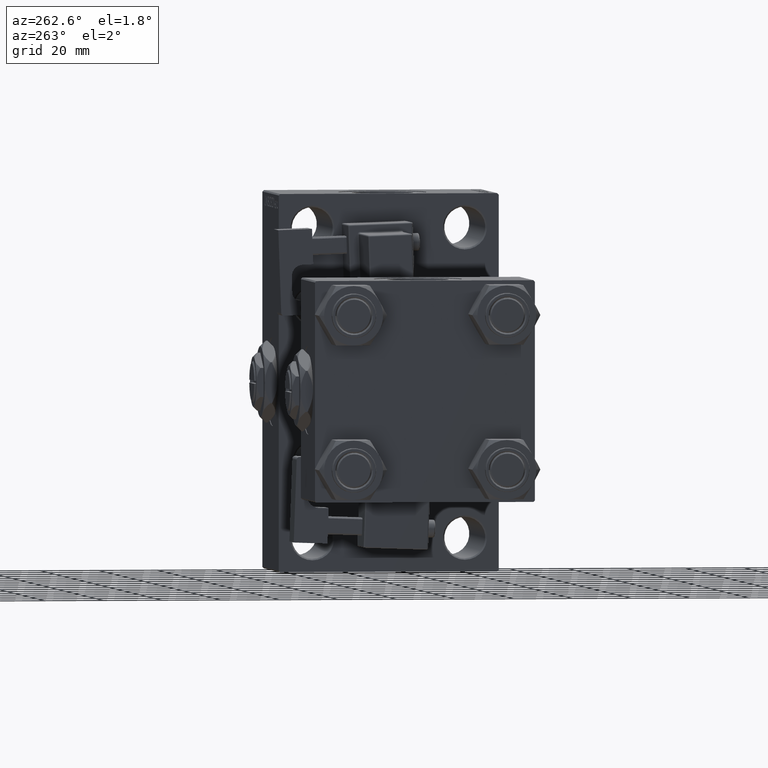
[diagram: clean part render]
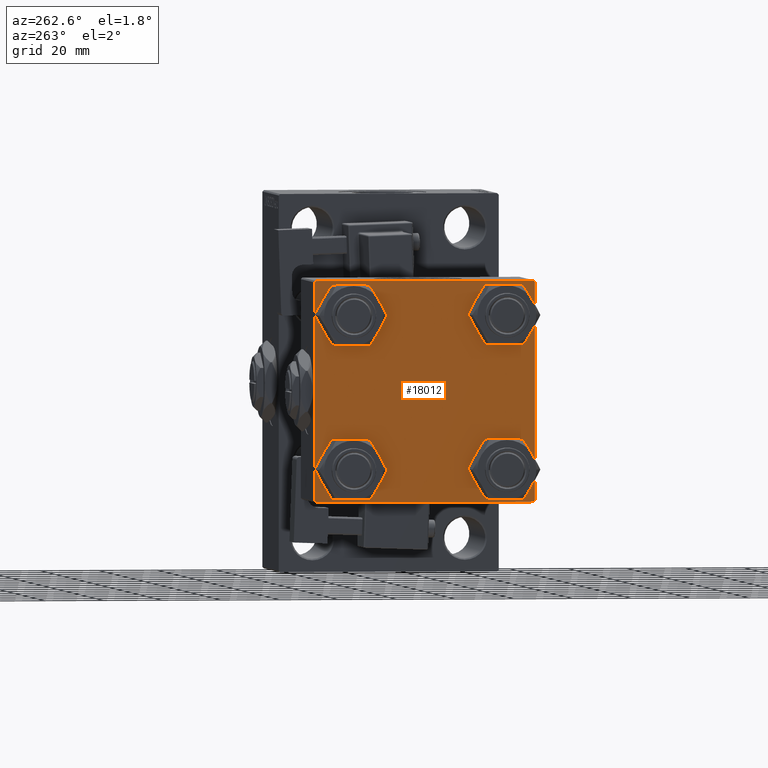
[diagram: same view with one face highlighted and labeled with its STEP entity id]
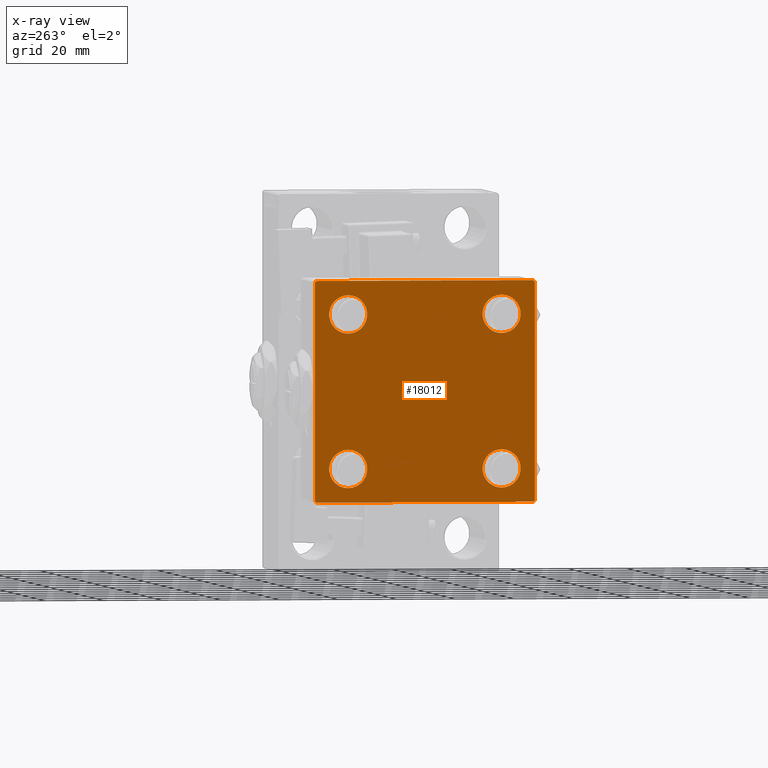
[diagram: x-ray of the same camera — body ghosted, the highlighted face saturated]
A machine part, auxiliary view. The second image highlights one B-rep face of the part: STEP entity #18012.
The next image is the same camera in x-ray: the body ghosted, the highlighted face saturated — about 0% of this face is hidden behind the body in this view.
In plain terms, the highlighted planar face has unit normal (-1, 0, 0).
Its self-contained STEP definition (entity closure, byte-faithful):
#272 = DIRECTION ( 'NONE',  ( 0.000000000000000000, -1.000000000000000000, -9.251858538542971581E-17 ) ) ;
#685 = VERTEX_POINT ( 'NONE', #20876 ) ;
#1801 = DIRECTION ( 'NONE',  ( 1.000000000000000000, -0.000000000000000000, 0.000000000000000000 ) ) ;
#1842 = EDGE_CURVE ( 'NONE', #22823, #34289, #29151, .T. ) ;
#2366 = ORIENTED_EDGE ( 'NONE', *, *, #12508, .T. ) ;
#2702 = VECTOR ( 'NONE', #33948, 1000.000000000000114 ) ;
#3434 = DIRECTION ( 'NONE',  ( 0.000000000000000000, 0.000000000000000000, 1.000000000000000000 ) ) ;
#3808 = EDGE_CURVE ( 'NONE', #40132, #7316, #44255, .T. ) ;
#4030 = CARTESIAN_POINT ( 'NONE',  ( 0.000000000000000000, 37.49999999999999289, 37.00000000000000000 ) ) ;
#4149 = CARTESIAN_POINT ( 'NONE',  ( 0.000000000000000000, 26.14999999999999858, -32.65000000000001990 ) ) ;
#5042 = DIRECTION ( 'NONE',  ( 1.000000000000000000, -0.000000000000000000, 0.000000000000000000 ) ) ;
#5252 = VERTEX_POINT ( 'NONE', #4030 ) ;
#5948 = DIRECTION ( 'NONE',  ( 0.000000000000000000, 0.000000000000000000, 1.000000000000000000 ) ) ;
#6146 = EDGE_CURVE ( 'NONE', #46607, #14690, #40222, .T. ) ;
#6574 = CARTESIAN_POINT ( 'NONE',  ( 0.000000000000000000, -37.50000000000000711, 37.49999999999999289 ) ) ;
#7316 = VERTEX_POINT ( 'NONE', #4149 ) ;
#7773 = CARTESIAN_POINT ( 'NONE',  ( 0.000000000000000000, 37.49999999999999289, 37.50000000000000000 ) ) ;
#7803 = CARTESIAN_POINT ( 'NONE',  ( 0.000000000000000000, -26.14999999999999147, -32.65000000000002700 ) ) ;
#7939 = DIRECTION ( 'NONE',  ( 0.000000000000000000, 0.000000000000000000, 1.000000000000000000 ) ) ;
#7972 = VERTEX_POINT ( 'NONE', #22657 ) ;
#7989 = CARTESIAN_POINT ( 'NONE',  ( 0.000000000000000000, -37.24999999999975842, -37.25000000000027001 ) ) ;
#8158 = CARTESIAN_POINT ( 'NONE',  ( 0.000000000000000000, 37.24999999999998579, -37.24999999999998579 ) ) ;
#8228 = EDGE_CURVE ( 'NONE', #19899, #9658, #21015, .T. ) ;
#8784 = DIRECTION ( 'NONE',  ( 1.000000000000000000, -0.000000000000000000, 0.000000000000000000 ) ) ;
#8958 = CARTESIAN_POINT ( 'NONE',  ( 0.000000000000000000, -26.14999999999999147, 32.65000000000003411 ) ) ;
#9658 = VERTEX_POINT ( 'NONE', #45497 ) ;
#10100 = EDGE_LOOP ( 'NONE', ( #41522, #45751 ) ) ;
#10614 = ORIENTED_EDGE ( 'NONE', *, *, #8228, .T. ) ;
#10862 = VERTEX_POINT ( 'NONE', #30817 ) ;
#11647 = CARTESIAN_POINT ( 'NONE',  ( 0.000000000000000000, -37.50000000000000000, -37.00000000000003553 ) ) ;
#12360 = AXIS2_PLACEMENT_3D ( 'NONE', #45970, #38411, #21743 ) ;
#12508 = EDGE_CURVE ( 'NONE', #42125, #34289, #36411, .T. ) ;
#12714 = CARTESIAN_POINT ( 'NONE',  ( -0.000000000000000000, -37.25000000000000000, 37.25000000000000000 ) ) ;
#13281 = CARTESIAN_POINT ( 'NONE',  ( 0.000000000000000000, -26.14999999999999147, -26.15000000000000924 ) ) ;
#14384 = LINE ( 'NONE', #6574, #28624 ) ;
#14690 = VERTEX_POINT ( 'NONE', #7803 ) ;
#14738 = DIRECTION ( 'NONE',  ( 0.000000000000000000, 0.000000000000000000, 1.000000000000000000 ) ) ;
#14784 = CARTESIAN_POINT ( 'NONE',  ( 0.000000000000000000, 26.14999999999999858, -26.15000000000000213 ) ) ;
#15073 = VECTOR ( 'NONE', #272, 1000.000000000000000 ) ;
#15288 = CARTESIAN_POINT ( 'NONE',  ( 0.000000000000000000, -26.14999999999999147, 26.15000000000000924 ) ) ;
#15409 = AXIS2_PLACEMENT_3D ( 'NONE', #32141, #24328, #7939 ) ;
#15651 = AXIS2_PLACEMENT_3D ( 'NONE', #13281, #37755, #14738 ) ;
#15944 = AXIS2_PLACEMENT_3D ( 'NONE', #19971, #8784, #47849 ) ;
#15952 = DIRECTION ( 'NONE',  ( -0.000000000000000000, -0.7071067811865474617, -0.7071067811865474617 ) ) ;
#16868 = EDGE_CURVE ( 'NONE', #14690, #46607, #27299, .T. ) ;
#17707 = VECTOR ( 'NONE', #30910, 1000.000000000000000 ) ;
#18012 = ADVANCED_FACE ( 'NONE', ( #50649, #49625, #42821, #37650, #33740 ), #37914, .T. ) ;
#18778 = ORIENTED_EDGE ( 'NONE', *, *, #35126, .T. ) ;
#19589 = EDGE_LOOP ( 'NONE', ( #45274, #26465 ) ) ;
#19601 = CARTESIAN_POINT ( 'NONE',  ( 0.000000000000000000, -26.14999999999999147, -19.64999999999999503 ) ) ;
#19812 = CARTESIAN_POINT ( 'NONE',  ( 0.000000000000000000, 26.14999999999999858, 26.15000000000000213 ) ) ;
#19899 = VERTEX_POINT ( 'NONE', #8958 ) ;
#19971 = CARTESIAN_POINT ( 'NONE',  ( 0.000000000000000000, -26.14999999999999147, -26.15000000000000924 ) ) ;
#20876 = CARTESIAN_POINT ( 'NONE',  ( 0.000000000000000000, -37.00000000000002132, -37.50000000000000711 ) ) ;
#20942 = CARTESIAN_POINT ( 'NONE',  ( 0.000000000000000000, -37.50000000000000711, 36.99999999999999289 ) ) ;
#20984 = EDGE_CURVE ( 'NONE', #9658, #19899, #35631, .T. ) ;
#21015 = CIRCLE ( 'NONE', #50142, 6.500000000000023093 ) ;
#21075 = CARTESIAN_POINT ( 'NONE',  ( 0.000000000000000000, 37.49999999999999289, 37.50000000000000000 ) ) ;
#21743 = DIRECTION ( 'NONE',  ( -0.000000000000000000, 0.000000000000000000, 1.000000000000000000 ) ) ;
#22216 = EDGE_CURVE ( 'NONE', #37827, #7972, #31497, .T. ) ;
#22657 = CARTESIAN_POINT ( 'NONE',  ( 0.000000000000000000, 26.14999999999999858, 32.65000000000002700 ) ) ;
#22823 = VERTEX_POINT ( 'NONE', #29066 ) ;
#22875 = CARTESIAN_POINT ( 'NONE',  ( 0.000000000000000000, -37.00000000000000711, 37.49999999999999289 ) ) ;
#22925 = EDGE_CURVE ( 'NONE', #10862, #28585, #35502, .T. ) ;
#23432 = LINE ( 'NONE', #48172, #39788 ) ;
#24328 = DIRECTION ( 'NONE',  ( 1.000000000000000000, -0.000000000000000000, 0.000000000000000000 ) ) ;
#24529 = CARTESIAN_POINT ( 'NONE',  ( 0.000000000000000000, 26.14999999999999858, -19.64999999999998792 ) ) ;
#24572 = DIRECTION ( 'NONE',  ( 0.000000000000000000, 0.000000000000000000, 1.000000000000000000 ) ) ;
#24880 = VECTOR ( 'NONE', #15952, 1000.000000000000114 ) ;
#24909 = ORIENTED_EDGE ( 'NONE', *, *, #36974, .F. ) ;
#25470 = DIRECTION ( 'NONE',  ( 1.000000000000000000, -0.000000000000000000, 0.000000000000000000 ) ) ;
#25838 = DIRECTION ( 'NONE',  ( 0.000000000000000000, 0.000000000000000000, -1.000000000000000000 ) ) ;
#25967 = ORIENTED_EDGE ( 'NONE', *, *, #20984, .T. ) ;
#26269 = AXIS2_PLACEMENT_3D ( 'NONE', #19812, #42759, #3434 ) ;
#26465 = ORIENTED_EDGE ( 'NONE', *, *, #22216, .T. ) ;
#26689 = CARTESIAN_POINT ( 'NONE',  ( 0.000000000000000000, 26.14999999999999858, 19.64999999999998437 ) ) ;
#27299 = CIRCLE ( 'NONE', #15651, 6.500000000000015987 ) ;
#27550 = LINE ( 'NONE', #7773, #28549 ) ;
#28549 = VECTOR ( 'NONE', #25838, 1000.000000000000000 ) ;
#28585 = VERTEX_POINT ( 'NONE', #43786 ) ;
#28624 = VECTOR ( 'NONE', #38349, 1000.000000000000000 ) ;
#28956 = EDGE_LOOP ( 'NONE', ( #18778, #41599, #48299, #47474, #24909, #2366, #51384, #32652 ) ) ;
#29066 = CARTESIAN_POINT ( 'NONE',  ( 0.000000000000000000, 36.99999999999999289, 37.50000000000000000 ) ) ;
#29151 = LINE ( 'NONE', #21075, #15073 ) ;
#29387 = EDGE_CURVE ( 'NONE', #22823, #5252, #49322, .T. ) ;
#30168 = DIRECTION ( 'NONE',  ( 0.000000000000000000, 0.000000000000000000, 1.000000000000000000 ) ) ;
#30817 = CARTESIAN_POINT ( 'NONE',  ( 0.000000000000000000, 37.49999999999999289, -36.99999999999998579 ) ) ;
#30910 = DIRECTION ( 'NONE',  ( 0.000000000000000000, -0.7071067811865524577, 0.7071067811865426878 ) ) ;
#31143 = EDGE_LOOP ( 'NONE', ( #10614, #25967 ) ) ;
#31479 = EDGE_LOOP ( 'NONE', ( #40747, #51202 ) ) ;
#31497 = CIRCLE ( 'NONE', #46483, 6.500000000000023093 ) ;
#32076 = CIRCLE ( 'NONE', #26269, 6.500000000000023093 ) ;
#32141 = CARTESIAN_POINT ( 'NONE',  ( 0.000000000000000000, 26.14999999999999858, -26.15000000000000213 ) ) ;
#32652 = ORIENTED_EDGE ( 'NONE', *, *, #29387, .T. ) ;
#33592 = EDGE_CURVE ( 'NONE', #685, #38390, #39763, .T. ) ;
#33740 = FACE_OUTER_BOUND ( 'NONE', #28956, .T. ) ;
#33948 = DIRECTION ( 'NONE',  ( 0.000000000000000000, 0.7071067811865474617, -0.7071067811865474617 ) ) ;
#34289 = VERTEX_POINT ( 'NONE', #22875 ) ;
#35126 = EDGE_CURVE ( 'NONE', #5252, #10862, #27550, .T. ) ;
#35502 = LINE ( 'NONE', #8158, #24880 ) ;
#35580 = DIRECTION ( 'NONE',  ( 0.000000000000000000, 0.000000000000000000, 1.000000000000000000 ) ) ;
#35631 = CIRCLE ( 'NONE', #42289, 6.500000000000023093 ) ;
#36411 = LINE ( 'NONE', #12714, #47818 ) ;
#36974 = EDGE_CURVE ( 'NONE', #42125, #38390, #14384, .T. ) ;
#37188 = DIRECTION ( 'NONE',  ( -0.000000000000000000, 0.7071067811865474617, 0.7071067811865474617 ) ) ;
#37650 = FACE_BOUND ( 'NONE', #19589, .T. ) ;
#37755 = DIRECTION ( 'NONE',  ( 1.000000000000000000, -0.000000000000000000, 0.000000000000000000 ) ) ;
#37827 = VERTEX_POINT ( 'NONE', #26689 ) ;
#37914 = PLANE ( 'NONE',  #12360 ) ;
#38349 = DIRECTION ( 'NONE',  ( 0.000000000000000000, 9.251858538542971581E-17, -1.000000000000000000 ) ) ;
#38390 = VERTEX_POINT ( 'NONE', #11647 ) ;
#38411 = DIRECTION ( 'NONE',  ( -1.000000000000000000, 0.000000000000000000, -0.000000000000000000 ) ) ;
#39749 = EDGE_CURVE ( 'NONE', #7316, #40132, #47029, .T. ) ;
#39763 = LINE ( 'NONE', #7989, #17707 ) ;
#39788 = VECTOR ( 'NONE', #42984, 1000.000000000000000 ) ;
#40132 = VERTEX_POINT ( 'NONE', #24529 ) ;
#40222 = CIRCLE ( 'NONE', #15944, 6.500000000000015987 ) ;
#40731 = CARTESIAN_POINT ( 'NONE',  ( 0.000000000000000000, 26.14999999999999858, 26.15000000000000213 ) ) ;
#40747 = ORIENTED_EDGE ( 'NONE', *, *, #6146, .T. ) ;
#41522 = ORIENTED_EDGE ( 'NONE', *, *, #3808, .T. ) ;
#41599 = ORIENTED_EDGE ( 'NONE', *, *, #22925, .T. ) ;
#41782 = AXIS2_PLACEMENT_3D ( 'NONE', #14784, #1801, #5948 ) ;
#42125 = VERTEX_POINT ( 'NONE', #20942 ) ;
#42289 = AXIS2_PLACEMENT_3D ( 'NONE', #45269, #25470, #35580 ) ;
#42759 = DIRECTION ( 'NONE',  ( 1.000000000000000000, -0.000000000000000000, 0.000000000000000000 ) ) ;
#42821 = FACE_BOUND ( 'NONE', #10100, .T. ) ;
#42984 = DIRECTION ( 'NONE',  ( 0.000000000000000000, -1.000000000000000000, -9.251858538542972814E-17 ) ) ;
#43786 = CARTESIAN_POINT ( 'NONE',  ( 0.000000000000000000, 36.99999999999997868, -37.50000000000000000 ) ) ;
#44255 = CIRCLE ( 'NONE', #41782, 6.500000000000015987 ) ;
#45134 = EDGE_CURVE ( 'NONE', #7972, #37827, #32076, .T. ) ;
#45269 = CARTESIAN_POINT ( 'NONE',  ( 0.000000000000000000, -26.14999999999999147, 26.15000000000000924 ) ) ;
#45274 = ORIENTED_EDGE ( 'NONE', *, *, #45134, .T. ) ;
#45497 = CARTESIAN_POINT ( 'NONE',  ( 0.000000000000000000, -26.14999999999999147, 19.64999999999999147 ) ) ;
#45751 = ORIENTED_EDGE ( 'NONE', *, *, #39749, .T. ) ;
#45970 = CARTESIAN_POINT ( 'NONE',  ( 0.000000000000000000, 0.000000000000000000, 0.000000000000000000 ) ) ;
#46483 = AXIS2_PLACEMENT_3D ( 'NONE', #40731, #5042, #24572 ) ;
#46565 = DIRECTION ( 'NONE',  ( 1.000000000000000000, -0.000000000000000000, 0.000000000000000000 ) ) ;
#46607 = VERTEX_POINT ( 'NONE', #19601 ) ;
#47029 = CIRCLE ( 'NONE', #15409, 6.500000000000015987 ) ;
#47474 = ORIENTED_EDGE ( 'NONE', *, *, #33592, .T. ) ;
#47818 = VECTOR ( 'NONE', #37188, 1000.000000000000114 ) ;
#47849 = DIRECTION ( 'NONE',  ( 0.000000000000000000, 0.000000000000000000, 1.000000000000000000 ) ) ;
#48172 = CARTESIAN_POINT ( 'NONE',  ( 0.000000000000000000, 37.49999999999999289, -37.50000000000000000 ) ) ;
#48299 = ORIENTED_EDGE ( 'NONE', *, *, #51243, .T. ) ;
#49322 = LINE ( 'NONE', #49580, #2702 ) ;
#49580 = CARTESIAN_POINT ( 'NONE',  ( 0.000000000000000000, 37.24999999999999289, 37.24999999999999289 ) ) ;
#49625 = FACE_BOUND ( 'NONE', #31479, .T. ) ;
#50142 = AXIS2_PLACEMENT_3D ( 'NONE', #15288, #46565, #30168 ) ;
#50649 = FACE_BOUND ( 'NONE', #31143, .T. ) ;
#51202 = ORIENTED_EDGE ( 'NONE', *, *, #16868, .T. ) ;
#51243 = EDGE_CURVE ( 'NONE', #28585, #685, #23432, .T. ) ;
#51384 = ORIENTED_EDGE ( 'NONE', *, *, #1842, .F. ) ;